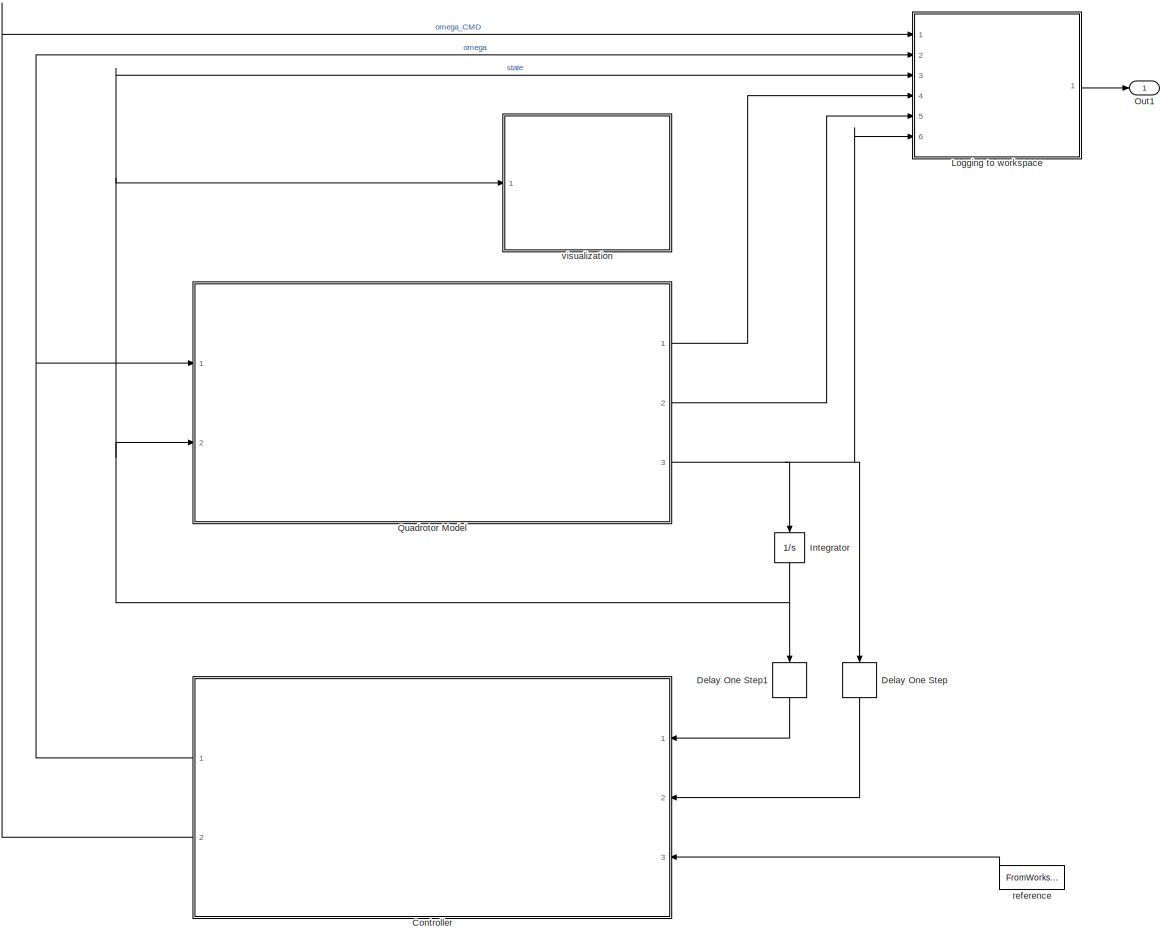
[diagram: root canvas - part 1/1, most of the canvas]
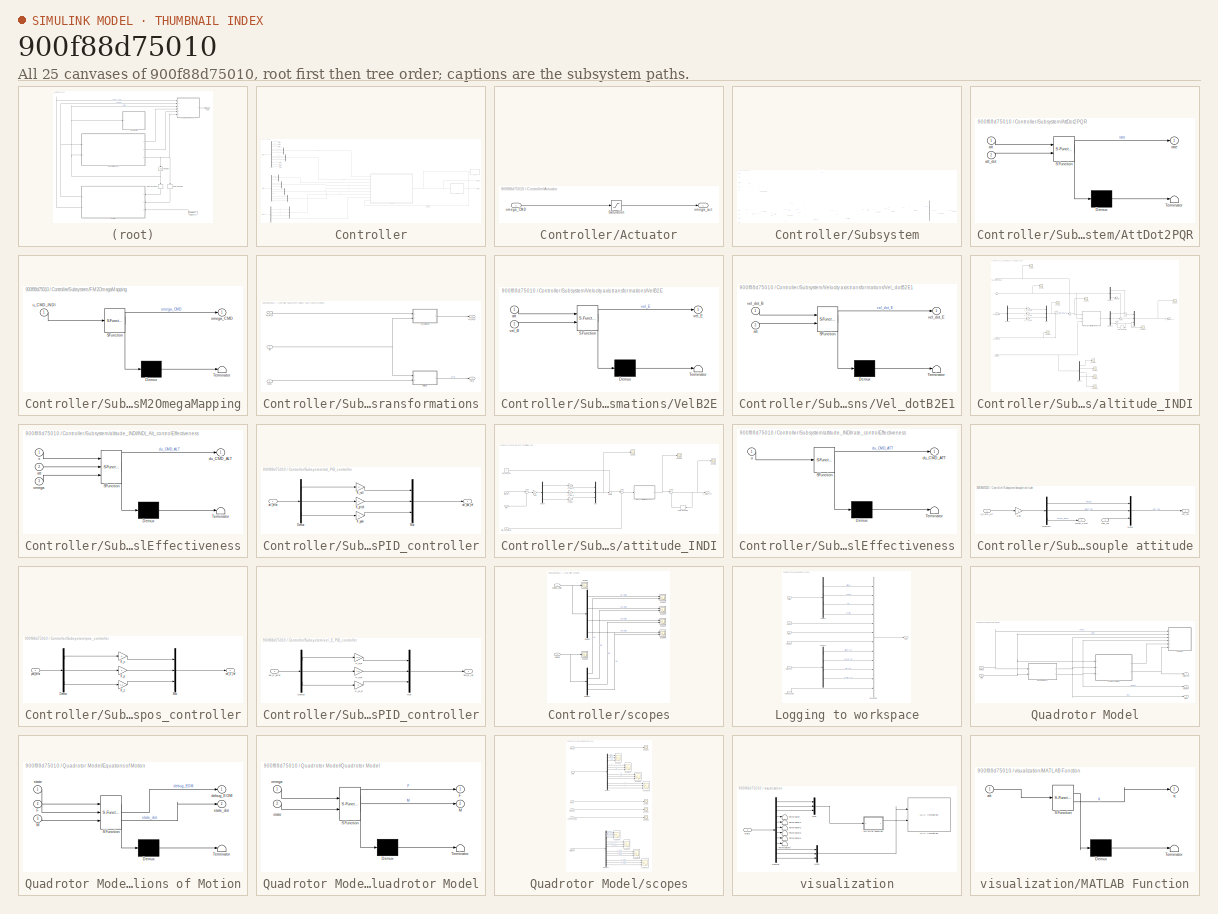
[diagram: thumbnail index - all 25 canvases of the model, root first then tree order]
MODEL slx_900f88d75010
KIND model
CONFIG AbsTol = auto
CONFIG EnableMultiTasking = off
CONFIG FixedStep = auto
CONFIG MaxStep = auto
CONFIG MinStep = auto
CONFIG RelTol = 1e-3
CONFIG SampleTimeConstraint = Unconstrained
CONFIG SolverName = VariableStepAuto
CONFIG StartTime = 0.0
CONFIG StopTime = 2
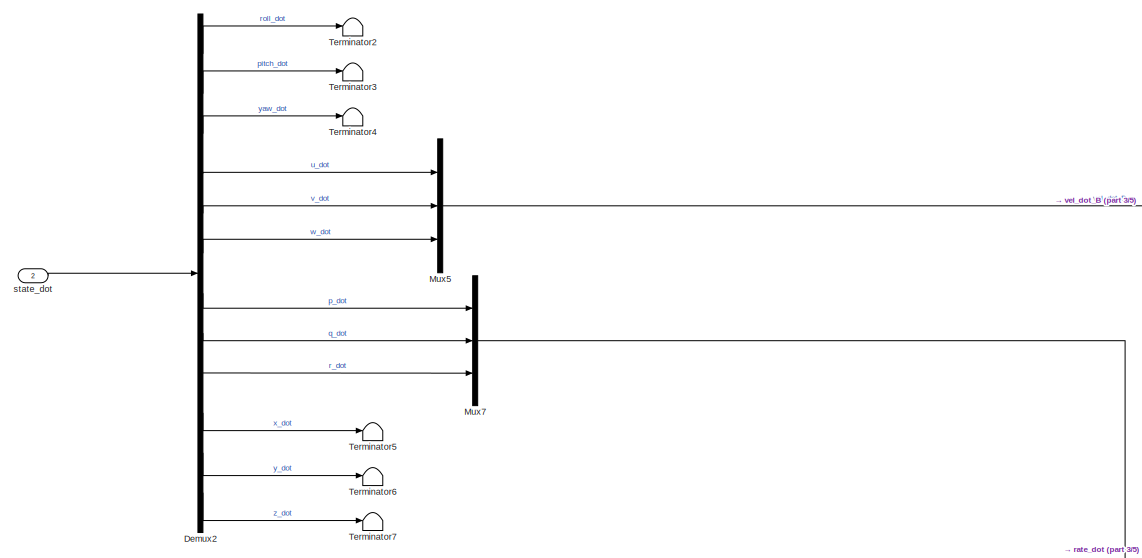
[diagram: Controller - part 1/5, top left region]
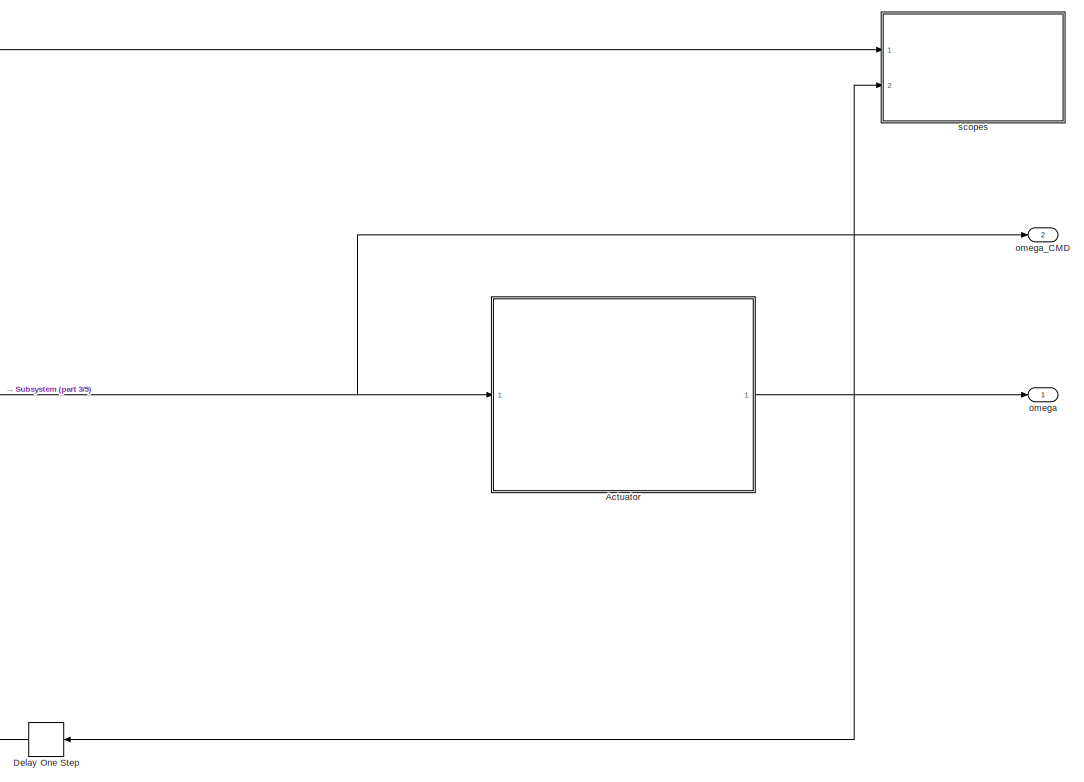
[diagram: Controller - part 2/5, middle right region]
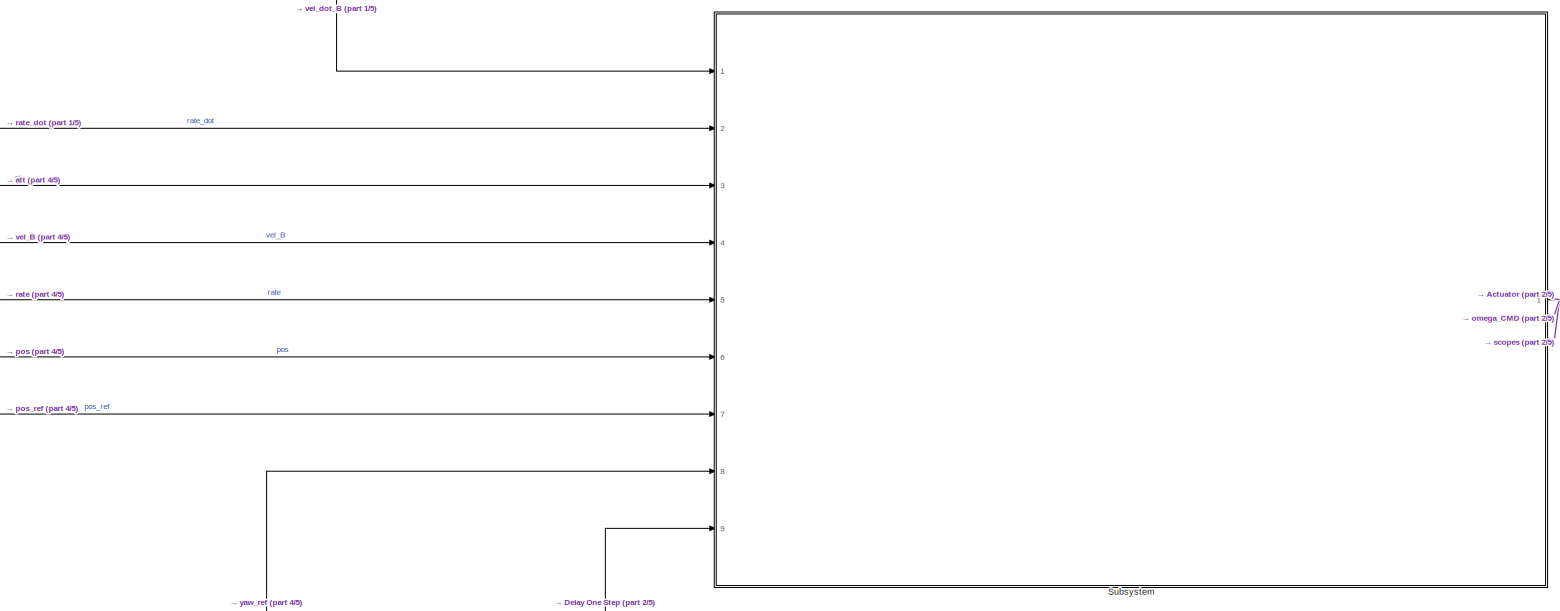
[diagram: Controller - part 3/5, central region]
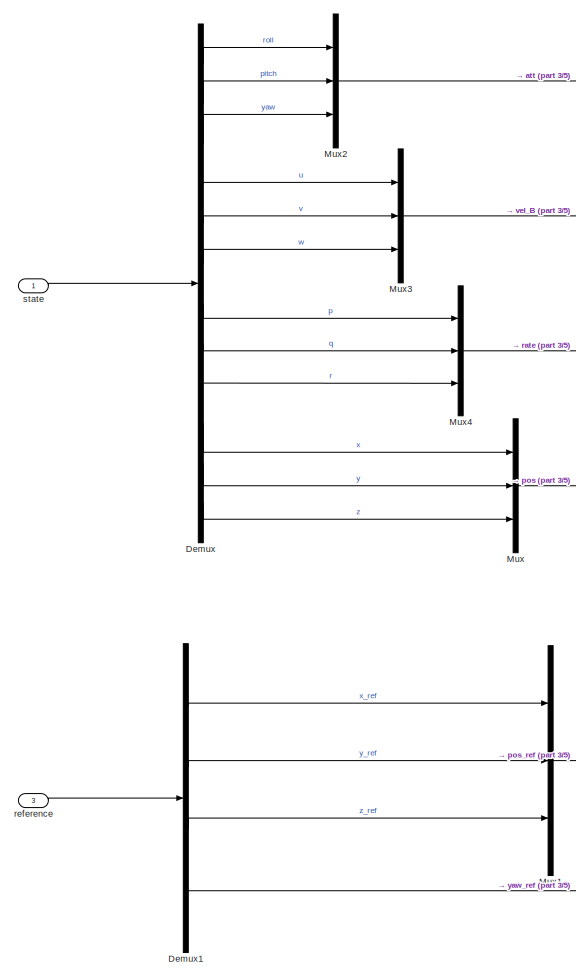
[diagram: Controller - part 4/5, bottom left region]
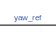
[diagram: Controller - part 5/5, bottom left region]
BLOCK [SubSystem] Controller
  Ports = [3, 2]
  RequestExecContextInheritance = off
BLOCK [SubSystem] Controller/Actuator
  Ports = [1, 1]
  RequestExecContextInheritance = off
BLOCK [Saturate] Controller/Actuator/Saturation
  LowerLimit = droneParams.minRPM
  UpperLimit = droneParams.maxRPM
BLOCK [Inport] Controller/Actuator/omega_CMD
BLOCK [Outport] Controller/Actuator/omega_act
BLOCK [Delay] Controller/Delay One Step
  DelayLength = 1
  InitialCondition = initialOmega
  InputPortMap = u0
  Ports = [1, 1]
BLOCK [Demux] Controller/Demux
  Outputs = 12
  Ports = [1, 12]
BLOCK [Demux] Controller/Demux1
  Ports = [1, 4]
BLOCK [Demux] Controller/Demux2
  Outputs = 12
  Ports = [1, 12]
BLOCK [Mux] Controller/Mux
  DisplayOption = bar
  Inputs = 3
  Ports = [3, 1]
BLOCK [Mux] Controller/Mux1
  DisplayOption = bar
  Inputs = 3
  Ports = [3, 1]
BLOCK [Mux] Controller/Mux2
  DisplayOption = bar
  Inputs = 3
  Ports = [3, 1]
BLOCK [Mux] Controller/Mux3
  DisplayOption = bar
  Inputs = 3
  Ports = [3, 1]
BLOCK [Mux] Controller/Mux4
  DisplayOption = bar
  Inputs = 3
  Ports = [3, 1]
BLOCK [Mux] Controller/Mux5
  DisplayOption = bar
  Inputs = 3
  Ports = [3, 1]
BLOCK [Mux] Controller/Mux7
  DisplayOption = bar
  Inputs = 3
  Ports = [3, 1]
BLOCK [SubSystem] Controller/Subsystem
  Ports = [9, 1]
  RequestExecContextInheritance = off
BLOCK [SubSystem] Controller/Subsystem/AttDot2PQR
  ErrorFcn = Stateflow.Translate.translate
  PermitHierarchicalResolution = ExplicitOnly
  Ports = [2, 1]
  RequestExecContextInheritance = off
  SFBlockType = MATLAB Function
  TreatAsAtomicUnit = on
BLOCK [Demux] Controller/Subsystem/AttDot2PQR/ Demux 
  Outputs = 1
  Ports = [1, 1]
BLOCK [S-Function] Controller/Subsystem/AttDot2PQR/ SFunction 
  EnableBusSupport = on
  FunctionName = sf_sfun
  PortCounts = [2 2]
  Ports = [2, 2]
  SFcnIsStateOwnerBlock = off
  SFunctionDeploymentMode = off
  Tag = Stateflow S-Function 6
BLOCK [Terminator] Controller/Subsystem/AttDot2PQR/ Terminator 
BLOCK [Inport] Controller/Subsystem/AttDot2PQR/att
BLOCK [Inport] Controller/Subsystem/AttDot2PQR/att_dot
  Port = 2
BLOCK [Outport] Controller/Subsystem/AttDot2PQR/rate
BLOCK [SubSystem] Controller/Subsystem/FM2OmegaMapping
  ErrorFcn = Stateflow.Translate.translate
  PermitHierarchicalResolution = ExplicitOnly
  Ports = [1, 1]
  RequestExecContextInheritance = off
  SFBlockType = MATLAB Function
  TreatAsAtomicUnit = on
BLOCK [Demux] Controller/Subsystem/FM2OmegaMapping/ Demux 
  Outputs = 1
  Ports = [1, 1]
BLOCK [S-Function] Controller/Subsystem/FM2OmegaMapping/ SFunction 
  EnableBusSupport = on
  FunctionName = sf_sfun
  Parameters = droneParams
  PortCounts = [1 2]
  Ports = [1, 2]
  SFcnIsStateOwnerBlock = off
  SFunctionDeploymentMode = off
  Tag = Stateflow S-Function 8
BLOCK [Terminator] Controller/Subsystem/FM2OmegaMapping/ Terminator 
BLOCK [Outport] Controller/Subsystem/FM2OmegaMapping/omega_CMD
BLOCK [Inport] Controller/Subsystem/FM2OmegaMapping/u_CMD_INDI
BLOCK [Gain] Controller/Subsystem/Gain1
  Gain = -1
BLOCK [Mux] Controller/Subsystem/Mux8
  DisplayOption = bar
  Inputs = 2
  Ports = [2, 1]
BLOCK [Sum] Controller/Subsystem/Sum
  Inputs = +-|
  Ports = [2, 1]
BLOCK [Sum] Controller/Subsystem/Sum1
  Inputs = -+|
  Ports = [2, 1]
BLOCK [Sum] Controller/Subsystem/Sum2
  Inputs = -+|
  Ports = [2, 1]
BLOCK [SubSystem] Controller/Subsystem/Velocity axis transformations
  Ports = [3, 2]
  RequestExecContextInheritance = off
BLOCK [SubSystem] Controller/Subsystem/Velocity axis transformations/VelB2E
  ErrorFcn = Stateflow.Translate.translate
  PermitHierarchicalResolution = ExplicitOnly
  Ports = [2, 1]
  RequestExecContextInheritance = off
  SFBlockType = MATLAB Function
  TreatAsAtomicUnit = on
BLOCK [Demux] Controller/Subsystem/Velocity axis transformations/VelB2E/ Demux 
  Outputs = 1
  Ports = [1, 1]
BLOCK [S-Function] Controller/Subsystem/Velocity axis transformations/VelB2E/ SFunction 
  EnableBusSupport = on
  FunctionName = sf_sfun
  PortCounts = [2 2]
  Ports = [2, 2]
  SFcnIsStateOwnerBlock = off
  SFunctionDeploymentMode = off
  Tag = Stateflow S-Function 3
BLOCK [Terminator] Controller/Subsystem/Velocity axis transformations/VelB2E/ Terminator 
BLOCK [Inport] Controller/Subsystem/Velocity axis transformations/VelB2E/att
BLOCK [Inport] Controller/Subsystem/Velocity axis transformations/VelB2E/vel_B
  Port = 2
BLOCK [Outport] Controller/Subsystem/Velocity axis transformations/VelB2E/vel_E
BLOCK [SubSystem] Controller/Subsystem/Velocity axis transformations/Vel_dotB2E1
  ErrorFcn = Stateflow.Translate.translate
  PermitHierarchicalResolution = ExplicitOnly
  Ports = [2, 1]
  RequestExecContextInheritance = off
  SFBlockType = MATLAB Function
  TreatAsAtomicUnit = on
BLOCK [Demux] Controller/Subsystem/Velocity axis transformations/Vel_dotB2E1/ Demux 
  Outputs = 1
  Ports = [1, 1]
BLOCK [S-Function] Controller/Subsystem/Velocity axis transformations/Vel_dotB2E1/ SFunction 
  EnableBusSupport = on
  FunctionName = sf_sfun
  PortCounts = [2 2]
  Ports = [2, 2]
  SFcnIsStateOwnerBlock = off
  SFunctionDeploymentMode = off
  Tag = Stateflow S-Function 4
BLOCK [Terminator] Controller/Subsystem/Velocity axis transformations/Vel_dotB2E1/ Terminator 
BLOCK [Inport] Controller/Subsystem/Velocity axis transformations/Vel_dotB2E1/att
  Port = 2
BLOCK [Inport] Controller/Subsystem/Velocity axis transformations/Vel_dotB2E1/vel_dot_B
BLOCK [Outport] Controller/Subsystem/Velocity axis transformations/Vel_dotB2E1/vel_dot_E
BLOCK [Inport] Controller/Subsystem/Velocity axis transformations/att
  Port = 3
BLOCK [Inport] Controller/Subsystem/Velocity axis transformations/vel_B
  Port = 2
BLOCK [Outport] Controller/Subsystem/Velocity axis transformations/vel_E
  Port = 2
BLOCK [Inport] Controller/Subsystem/Velocity axis transformations/vel_dot_B
BLOCK [Outport] Controller/Subsystem/Velocity axis transformations/vel_dot_E
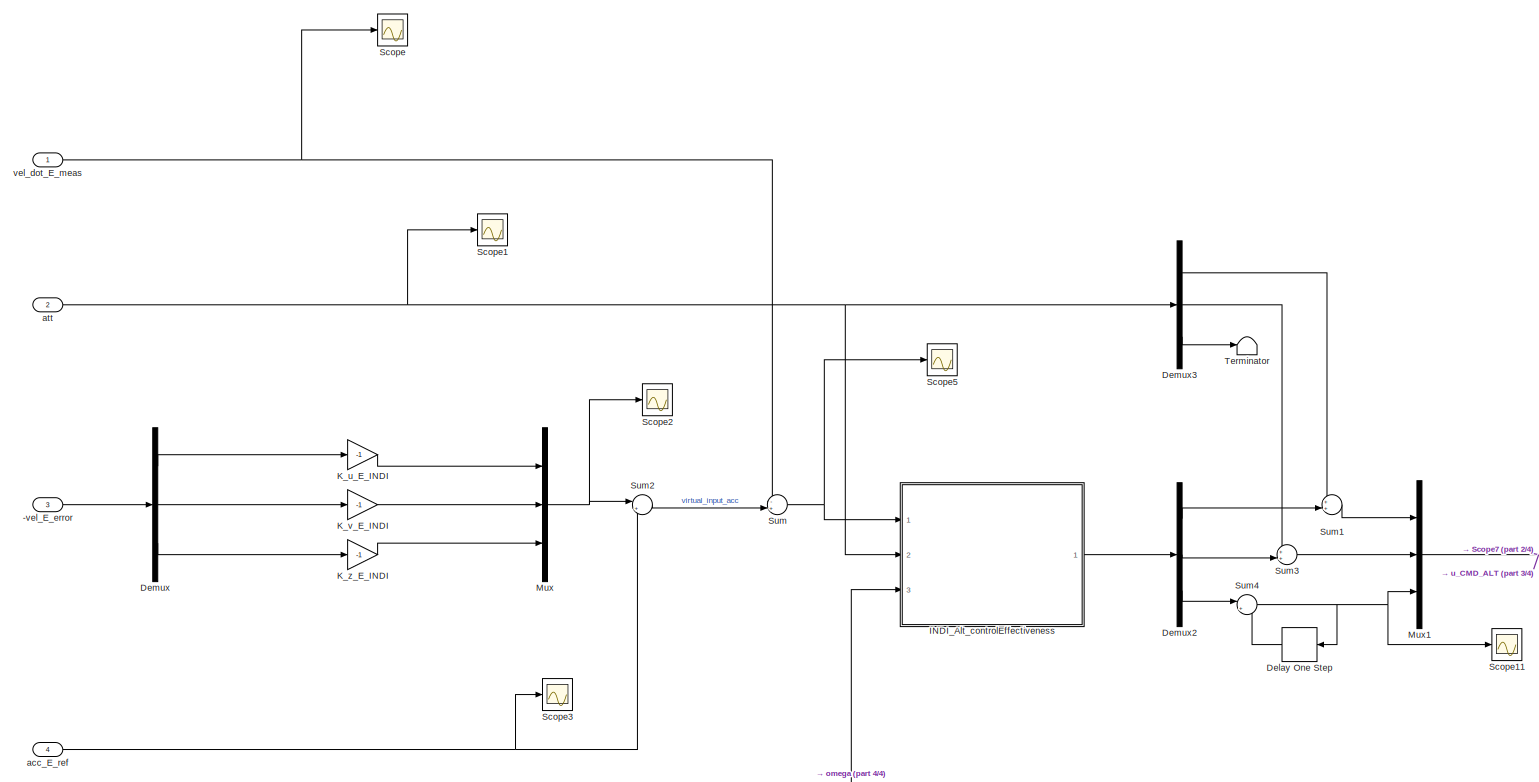
[diagram: Controller/Subsystem/altitude_INDI - part 1/4, full width, top band]
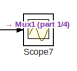
[diagram: Controller/Subsystem/altitude_INDI - part 2/4, top right region]
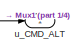
[diagram: Controller/Subsystem/altitude_INDI - part 3/4, middle right region]
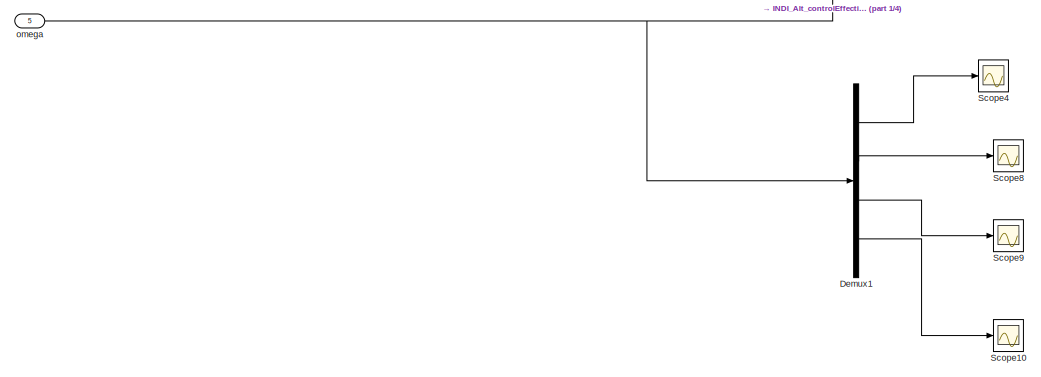
[diagram: Controller/Subsystem/altitude_INDI - part 4/4, bottom left region]
BLOCK [SubSystem] Controller/Subsystem/altitude_INDI
  Ports = [5, 1]
  RequestExecContextInheritance = off
BLOCK [Inport] Controller/Subsystem/altitude_INDI/-vel_E_error
  Port = 3
BLOCK [Delay] Controller/Subsystem/altitude_INDI/Delay One Step
  DelayLength = 1
  InputPortMap = u0
  NameLocation = top
  Ports = [1, 1]
BLOCK [Demux] Controller/Subsystem/altitude_INDI/Demux
  Outputs = 3
  Ports = [1, 3]
BLOCK [Demux] Controller/Subsystem/altitude_INDI/Demux1
  Ports = [1, 4]
BLOCK [Demux] Controller/Subsystem/altitude_INDI/Demux2
  Outputs = 3
  Ports = [1, 3]
BLOCK [Demux] Controller/Subsystem/altitude_INDI/Demux3
  Outputs = 3
  Ports = [1, 3]
BLOCK [SubSystem] Controller/Subsystem/altitude_INDI/INDI_Alt_controlEffectiveness
  ErrorFcn = Stateflow.Translate.translate
  PermitHierarchicalResolution = ExplicitOnly
  Ports = [3, 1]
  RequestExecContextInheritance = off
  SFBlockType = MATLAB Function
  TreatAsAtomicUnit = on
BLOCK [Demux] Controller/Subsystem/altitude_INDI/INDI_Alt_controlEffectiveness/ Demux 
  Outputs = 1
  Ports = [1, 1]
BLOCK [S-Function] Controller/Subsystem/altitude_INDI/INDI_Alt_controlEffectiveness/ SFunction 
  EnableBusSupport = on
  FunctionName = sf_sfun
  Parameters = droneParams
  PortCounts = [3 2]
  Ports = [3, 2]
  SFcnIsStateOwnerBlock = off
  SFunctionDeploymentMode = off
  Tag = Stateflow S-Function 5
BLOCK [Terminator] Controller/Subsystem/altitude_INDI/INDI_Alt_controlEffectiveness/ Terminator 
BLOCK [Inport] Controller/Subsystem/altitude_INDI/INDI_Alt_controlEffectiveness/att
  Port = 2
BLOCK [Outport] Controller/Subsystem/altitude_INDI/INDI_Alt_controlEffectiveness/du_CMD_ALT
BLOCK [Inport] Controller/Subsystem/altitude_INDI/INDI_Alt_controlEffectiveness/omega
  Port = 3
BLOCK [Inport] Controller/Subsystem/altitude_INDI/INDI_Alt_controlEffectiveness/x
BLOCK [Gain] Controller/Subsystem/altitude_INDI/K_u_E_INDI
  Gain = -1
BLOCK [Gain] Controller/Subsystem/altitude_INDI/K_v_E_INDI
  Gain = -1
BLOCK [Gain] Controller/Subsystem/altitude_INDI/K_z_E_INDI
  Gain = -1
BLOCK [Mux] Controller/Subsystem/altitude_INDI/Mux
  DisplayOption = bar
  Inputs = 3
  Ports = [3, 1]
BLOCK [Mux] Controller/Subsystem/altitude_INDI/Mux1
  DisplayOption = bar
  Inputs = 3
  Ports = [3, 1]
BLOCK [Scope] Controller/Subsystem/altitude_INDI/Scope
  Floating = off
  NumInputPorts = 1
  Ports = [1]
  ScopeSpecificationString = Simulink.scopes.TimeScopeBlockCfg('CurrentConfiguration', extmgr.ConfigurationSet(extmgr.Configuration('Core','General UI',true),extmgr.Configuration('Core','Source UI',true),extmgr.Configuration('Sources','WiredSimulink',true,'DataLoggingVariableName','ScopeData29'),extmgr.Configuration('Visuals','Time Domain',true,'SerializedDisplays',{struct('MinYLimReal','-2.56438','MaxYLimReal','5.07501','YLa...<+1433ch>
BLOCK [Scope] Controller/Subsystem/altitude_INDI/Scope1
  Floating = off
  NumInputPorts = 1
  Ports = [1]
  ScopeSpecificationString = Simulink.scopes.TimeScopeBlockCfg('CurrentConfiguration', extmgr.ConfigurationSet(extmgr.Configuration('Core','General UI',true),extmgr.Configuration('Core','Source UI',true),extmgr.Configuration('Sources','WiredSimulink',true,'DataLoggingVariableName','ScopeData30'),extmgr.Configuration('Visuals','Time Domain',true,'SerializedDisplays',{struct('MinYLimReal','-0.79235','MaxYLimReal','0.2459','YLab...<+1398ch>
BLOCK [Scope] Controller/Subsystem/altitude_INDI/Scope10
  Floating = off
  NumInputPorts = 1
  Ports = [1]
  ScopeSpecificationString = Simulink.scopes.TimeScopeBlockCfg('CurrentConfiguration', extmgr.ConfigurationSet(extmgr.Configuration('Core','General UI',true),extmgr.Configuration('Core','Source UI',true),extmgr.Configuration('Sources','WiredSimulink',true,'DataLoggingVariableName','ScopeData39'),extmgr.Configuration('Visuals','Time Domain',true,'SerializedDisplays',{struct('MinYLimReal','-10','MaxYLimReal','2500','YLabelReal'...<+1349ch>
BLOCK [Scope] Controller/Subsystem/altitude_INDI/Scope11
  Floating = off
  NumInputPorts = 1
  Ports = [1]
  ScopeSpecificationString = Simulink.scopes.TimeScopeBlockCfg('CurrentConfiguration', extmgr.ConfigurationSet(extmgr.Configuration('Core','General UI',true),extmgr.Configuration('Core','Source UI',true),extmgr.Configuration('Sources','WiredSimulink',true,'DataLoggingVariableName','ScopeData2'),extmgr.Configuration('Visuals','Time Domain',true,'SerializedDisplays',{struct('MinYLimReal','-4.96339','MaxYLimReal','0.55149','YLab...<+1363ch>
BLOCK [Scope] Controller/Subsystem/altitude_INDI/Scope2
  Floating = off
  NumInputPorts = 1
  Ports = [1]
  ScopeSpecificationString = Simulink.scopes.TimeScopeBlockCfg('CurrentConfiguration', extmgr.ConfigurationSet(extmgr.Configuration('Core','General UI',true),extmgr.Configuration('Core','Source UI',true),extmgr.Configuration('Sources','WiredSimulink',true,'DataLoggingVariableName','ScopeData31'),extmgr.Configuration('Visuals','Time Domain',true,'SerializedDisplays',{struct('MinYLimReal','-0.13907','MaxYLimReal','0.26068','YLa...<+1396ch>
BLOCK [Scope] Controller/Subsystem/altitude_INDI/Scope3
  Floating = off
  NumInputPorts = 1
  Ports = [1]
  ScopeSpecificationString = Simulink.scopes.TimeScopeBlockCfg('CurrentConfiguration', extmgr.ConfigurationSet(extmgr.Configuration('Core','General UI',true),extmgr.Configuration('Core','Source UI',true),extmgr.Configuration('Sources','WiredSimulink',true,'DataLoggingVariableName','ScopeData32'),extmgr.Configuration('Visuals','Time Domain',true,'SerializedDisplays',{struct('MinYLimReal','-0.4034','MaxYLimReal','0.65789','YLab...<+1397ch>
BLOCK [Scope] Controller/Subsystem/altitude_INDI/Scope4
  Floating = off
  NumInputPorts = 1
  Ports = [1]
  ScopeSpecificationString = Simulink.scopes.TimeScopeBlockCfg('CurrentConfiguration', extmgr.ConfigurationSet(extmgr.Configuration('Core','General UI',true),extmgr.Configuration('Core','Source UI',true),extmgr.Configuration('Sources','WiredSimulink',true,'DataLoggingVariableName','ScopeData33'),extmgr.Configuration('Visuals','Time Domain',true,'SerializedDisplays',{struct('MinYLimReal','76.02303','MaxYLimReal','1315.79272','...<+1382ch>
BLOCK [Scope] Controller/Subsystem/altitude_INDI/Scope5
  Floating = off
  NumInputPorts = 1
  Ports = [1]
  ScopeSpecificationString = Simulink.scopes.TimeScopeBlockCfg('CurrentConfiguration', extmgr.ConfigurationSet(extmgr.Configuration('Core','General UI',true),extmgr.Configuration('Core','Source UI',true),extmgr.Configuration('Sources','WiredSimulink',true,'DataLoggingVariableName','ScopeData34'),extmgr.Configuration('Visuals','Time Domain',true,'SerializedDisplays',{struct('MinYLimReal','-10.02297','MaxYLimReal','1.92874','YL...<+1385ch>
BLOCK [Scope] Controller/Subsystem/altitude_INDI/Scope7
  Floating = off
  NumInputPorts = 1
  Ports = [1]
  ScopeSpecificationString = Simulink.scopes.TimeScopeBlockCfg('CurrentConfiguration', extmgr.ConfigurationSet(extmgr.Configuration('Core','General UI',true),extmgr.Configuration('Core','Source UI',true),extmgr.Configuration('Sources','WiredSimulink',true,'DataLoggingVariableName','ScopeData36'),extmgr.Configuration('Visuals','Time Domain',true,'SerializedDisplays',{struct('MinYLimReal','-5.57793','MaxYLimReal','0.72212','YLa...<+1397ch>
BLOCK [Scope] Controller/Subsystem/altitude_INDI/Scope8
  Floating = off
  NumInputPorts = 1
  Ports = [1]
  ScopeSpecificationString = Simulink.scopes.TimeScopeBlockCfg('CurrentConfiguration', extmgr.ConfigurationSet(extmgr.Configuration('Core','General UI',true),extmgr.Configuration('Core','Source UI',true),extmgr.Configuration('Sources','WiredSimulink',true,'DataLoggingVariableName','ScopeData37'),extmgr.Configuration('Visuals','Time Domain',true,'SerializedDisplays',{struct('MinYLimReal','-1.00000','MaxYLimReal','2100','YLabel...<+1404ch>
BLOCK [Scope] Controller/Subsystem/altitude_INDI/Scope9
  Floating = off
  NumInputPorts = 1
  Ports = [1]
  ScopeSpecificationString = Simulink.scopes.TimeScopeBlockCfg('CurrentConfiguration', extmgr.ConfigurationSet(extmgr.Configuration('Core','General UI',true),extmgr.Configuration('Core','Source UI',true),extmgr.Configuration('Sources','WiredSimulink',true,'DataLoggingVariableName','ScopeData38'),extmgr.Configuration('Visuals','Time Domain',true,'SerializedDisplays',{struct('MinYLimReal','167.46679','MaxYLimReal','492.79886','...<+1401ch>
BLOCK [Sum] Controller/Subsystem/altitude_INDI/Sum
  Inputs = -+|
  Ports = [2, 1]
BLOCK [Sum] Controller/Subsystem/altitude_INDI/Sum1
  Inputs = ++|
  Ports = [2, 1]
BLOCK [Sum] Controller/Subsystem/altitude_INDI/Sum2
  Inputs = |++
  Ports = [2, 1]
BLOCK [Sum] Controller/Subsystem/altitude_INDI/Sum3
  Inputs = ++|
  Ports = [2, 1]
BLOCK [Sum] Controller/Subsystem/altitude_INDI/Sum4
  Inputs = |++
  Ports = [2, 1]
BLOCK [Terminator] Controller/Subsystem/altitude_INDI/Terminator
BLOCK [Inport] Controller/Subsystem/altitude_INDI/acc_E_ref
  Port = 4
BLOCK [Inport] Controller/Subsystem/altitude_INDI/att
  Port = 2
BLOCK [Inport] Controller/Subsystem/altitude_INDI/omega
  Port = 5
BLOCK [Outport] Controller/Subsystem/altitude_INDI/u_CMD_ALT
BLOCK [Inport] Controller/Subsystem/altitude_INDI/vel_dot_E_meas
BLOCK [Inport] Controller/Subsystem/att
  Port = 3
BLOCK [SubSystem] Controller/Subsystem/att_PID_controller
  Ports = [1, 1]
  RequestExecContextInheritance = off
BLOCK [Demux] Controller/Subsystem/att_PID_controller/Demux
  Outputs = 3
  Ports = [1, 3]
BLOCK [Gain] Controller/Subsystem/att_PID_controller/K_pitch
  Gain = 2
BLOCK [Gain] Controller/Subsystem/att_PID_controller/K_roll
  Gain = 2
BLOCK [Gain] Controller/Subsystem/att_PID_controller/K_yaw
  Gain = 2
BLOCK [Mux] Controller/Subsystem/att_PID_controller/Mux
  DisplayOption = bar
  Inputs = 3
  Ports = [3, 1]
BLOCK [Outport] Controller/Subsystem/att_PID_controller/att_dot_ref
BLOCK [Inport] Controller/Subsystem/att_PID_controller/att_error
BLOCK [SubSystem] Controller/Subsystem/attitude_INDI
  Ports = [3, 1]
  RequestExecContextInheritance = off
BLOCK [Delay] Controller/Subsystem/attitude_INDI/Delay One Step
  DelayLength = 1
  InputPortMap = u0
  Ports = [1, 1]
BLOCK [Demux] Controller/Subsystem/attitude_INDI/Demux
  Outputs = 3
  Ports = [1, 3]
BLOCK [Gain] Controller/Subsystem/attitude_INDI/Gain
  Gain = -1
BLOCK [Gain] Controller/Subsystem/attitude_INDI/K_INDI_p
  Gain = 10
BLOCK [Gain] Controller/Subsystem/attitude_INDI/K_INDI_q
  Gain = 10
BLOCK [Gain] Controller/Subsystem/attitude_INDI/K_INDI_r
  Gain = 5
BLOCK [Mux] Controller/Subsystem/attitude_INDI/Mux
  DisplayOption = bar
  Inputs = 3
  Ports = [3, 1]
BLOCK [Scope] Controller/Subsystem/attitude_INDI/Scope
  Floating = off
  NumInputPorts = 1
  Ports = [1]
  ScopeSpecificationString = Simulink.scopes.TimeScopeBlockCfg('CurrentConfiguration', extmgr.ConfigurationSet(extmgr.Configuration('Core','General UI',true),extmgr.Configuration('Core','Source UI',true),extmgr.Configuration('Sources','WiredSimulink',true,'DataLoggingVariableName','ScopeData9'),extmgr.Configuration('Visuals','Time Domain',true,'SerializedDisplays',{struct('MinYLimReal','-99.44465','MaxYLimReal','235.76904','Y...<+1399ch>
BLOCK [Scope] Controller/Subsystem/attitude_INDI/Scope1
  Floating = off
  NumInputPorts = 1
  Ports = [1]
  ScopeSpecificationString = Simulink.scopes.TimeScopeBlockCfg('CurrentConfiguration', extmgr.ConfigurationSet(extmgr.Configuration('Core','General UI',true),extmgr.Configuration('Core','Source UI',true),extmgr.Configuration('Sources','WiredSimulink',true,'DataLoggingVariableName','ScopeData1'),extmgr.Configuration('Visuals','Time Domain',true,'SerializedDisplays',{struct('MinYLimReal','-0.03078','MaxYLimReal','0.02965','YLab...<+1402ch>
BLOCK [Scope] Controller/Subsystem/attitude_INDI/Scope2
  Floating = off
  NumInputPorts = 1
  Ports = [1]
  ScopeSpecificationString = Simulink.scopes.TimeScopeBlockCfg('CurrentConfiguration', extmgr.ConfigurationSet(extmgr.Configuration('Core','General UI',true),extmgr.Configuration('Core','Source UI',true),extmgr.Configuration('Sources','WiredSimulink',true,'DataLoggingVariableName','ScopeData3'),extmgr.Configuration('Visuals','Time Domain',true,'SerializedDisplays',{struct('MinYLimReal','-0.03122','MaxYLimReal','0.01477','YLab...<+1446ch>
BLOCK [Sum] Controller/Subsystem/attitude_INDI/Sum
  Inputs = |-+
  Ports = [2, 1]
BLOCK [Sum] Controller/Subsystem/attitude_INDI/Sum1
  Inputs = ++|
  Ports = [2, 1]
BLOCK [Sum] Controller/Subsystem/attitude_INDI/Sum2
  Inputs = |+-
  Ports = [2, 1]
BLOCK [Sum] Controller/Subsystem/attitude_INDI/Sum3
  Inputs = |++
  Ports = [2, 1]
BLOCK [Constant] Controller/Subsystem/attitude_INDI/pqr_dot_des
  Value = 0
BLOCK [Inport] Controller/Subsystem/attitude_INDI/rate
  Port = 2
BLOCK [SubSystem] Controller/Subsystem/attitude_INDI/rate_controlEffectiveness
  ErrorFcn = Stateflow.Translate.translate
  PermitHierarchicalResolution = ExplicitOnly
  Ports = [1, 1]
  RequestExecContextInheritance = off
  SFBlockType = MATLAB Function
  TreatAsAtomicUnit = on
BLOCK [Demux] Controller/Subsystem/attitude_INDI/rate_controlEffectiveness/ Demux 
  Outputs = 1
  Ports = [1, 1]
BLOCK [S-Function] Controller/Subsystem/attitude_INDI/rate_controlEffectiveness/ SFunction 
  EnableBusSupport = on
  FunctionName = sf_sfun
  Parameters = droneParams
  PortCounts = [1 2]
  Ports = [1, 2]
  SFcnIsStateOwnerBlock = off
  SFunctionDeploymentMode = off
  Tag = Stateflow S-Function 7
BLOCK [Terminator] Controller/Subsystem/attitude_INDI/rate_controlEffectiveness/ Terminator 
BLOCK [Outport] Controller/Subsystem/attitude_INDI/rate_controlEffectiveness/du_CMD_ATT
BLOCK [Inport] Controller/Subsystem/attitude_INDI/rate_controlEffectiveness/u
BLOCK [Inport] Controller/Subsystem/attitude_INDI/rate_dot_meas
BLOCK [Inport] Controller/Subsystem/attitude_INDI/rate_ref
  Port = 3
BLOCK [Outport] Controller/Subsystem/attitude_INDI/u_CMD_ATT
BLOCK [SubSystem] Controller/Subsystem/decouple attitude
  Ports = [2, 2]
  RequestExecContextInheritance = off
BLOCK [Demux] Controller/Subsystem/decouple attitude/Demux4
  Outputs = 3
  Ports = [1, 3]
BLOCK [Gain] Controller/Subsystem/decouple attitude/Gain
  Gain = -1
BLOCK [Mux] Controller/Subsystem/decouple attitude/Mux6
  DisplayOption = bar
  Inputs = 3
  Ports = [3, 1]
BLOCK [Outport] Controller/Subsystem/decouple attitude/att_ref
BLOCK [Outport] Controller/Subsystem/decouple attitude/thrust_CMD
  Port = 2
BLOCK [Inport] Controller/Subsystem/decouple attitude/u_CMD_ALT
BLOCK [Inport] Controller/Subsystem/decouple attitude/yaw_ref
  Port = 2
BLOCK [Inport] Controller/Subsystem/omega
  Port = 9
BLOCK [Outport] Controller/Subsystem/omega_CMD
BLOCK [Inport] Controller/Subsystem/pos
  Port = 6
BLOCK [SubSystem] Controller/Subsystem/pos_controller
  Ports = [1, 1]
  RequestExecContextInheritance = off
BLOCK [Demux] Controller/Subsystem/pos_controller/Demux
  Outputs = 3
  Ports = [1, 3]
BLOCK [Gain] Controller/Subsystem/pos_controller/K_x
BLOCK [Gain] Controller/Subsystem/pos_controller/K_y
BLOCK [Gain] Controller/Subsystem/pos_controller/K_z
  Gain = 1.5
BLOCK [Mux] Controller/Subsystem/pos_controller/Mux
  DisplayOption = bar
  Inputs = 3
  Ports = [3, 1]
BLOCK [Inport] Controller/Subsystem/pos_controller/pos_error
BLOCK [Outport] Controller/Subsystem/pos_controller/vel_E_ref
BLOCK [Inport] Controller/Subsystem/pos_ref
  Port = 7
BLOCK [Inport] Controller/Subsystem/rate
  Port = 5
BLOCK [Inport] Controller/Subsystem/rate_dot
  Port = 2
BLOCK [Inport] Controller/Subsystem/vel_B
  Port = 4
BLOCK [SubSystem] Controller/Subsystem/vel_E_PID_controller
  Ports = [1, 1]
  RequestExecContextInheritance = off
BLOCK [Demux] Controller/Subsystem/vel_E_PID_controller/Demux
  Outputs = 3
  Ports = [1, 3]
BLOCK [Gain] Controller/Subsystem/vel_E_PID_controller/K_u_E
  Gain = 2.5
BLOCK [Gain] Controller/Subsystem/vel_E_PID_controller/K_v_E
  Gain = 2.5
BLOCK [Gain] Controller/Subsystem/vel_E_PID_controller/K_w_E
  Gain = 3
BLOCK [Mux] Controller/Subsystem/vel_E_PID_controller/Mux
  DisplayOption = bar
  Inputs = 3
  Ports = [3, 1]
BLOCK [Outport] Controller/Subsystem/vel_E_PID_controller/acc_E_ref
BLOCK [Inport] Controller/Subsystem/vel_E_PID_controller/vel_E_error
BLOCK [Inport] Controller/Subsystem/vel_dot_B
BLOCK [Inport] Controller/Subsystem/yaw_ref
  Port = 8
BLOCK [Terminator] Controller/Terminator2
BLOCK [Terminator] Controller/Terminator3
BLOCK [Terminator] Controller/Terminator4
BLOCK [Terminator] Controller/Terminator5
BLOCK [Terminator] Controller/Terminator6
BLOCK [Terminator] Controller/Terminator7
BLOCK [Outport] Controller/omega
  PortDimensions = 4
BLOCK [Outport] Controller/omega_CMD
  Port = 2
BLOCK [Inport] Controller/reference
  Port = 3
BLOCK [SubSystem] Controller/scopes
  Ports = [2]
  RequestExecContextInheritance = off
BLOCK [Demux] Controller/scopes/Demux
  Ports = [1, 4]
BLOCK [Demux] Controller/scopes/Demux1
  Ports = [1, 4]
BLOCK [Scope] Controller/scopes/Scope
  Floating = off
  NumInputPorts = 1
  Ports = [1]
  ScopeSpecificationString = Simulink.scopes.TimeScopeBlockCfg('CurrentConfiguration', extmgr.ConfigurationSet(extmgr.Configuration('Core','General UI',true),extmgr.Configuration('Core','Source UI',true),extmgr.Configuration('Sources','WiredSimulink',true,'DataLoggingVariableName','ScopeData4'),extmgr.Configuration('Visuals','Time Domain',true,'SerializedDisplays',{struct('MinYLimReal','-359.3827','MaxYLimReal','3234.4443','Y...<+1468ch>
BLOCK [Scope] Controller/scopes/Scope1
  Floating = off
  NumInputPorts = 1
  Ports = [1]
  ScopeSpecificationString = Simulink.scopes.TimeScopeBlockCfg('CurrentConfiguration', extmgr.ConfigurationSet(extmgr.Configuration('Core','General UI',true),extmgr.Configuration('Core','Source UI',true),extmgr.Configuration('Sources','WiredSimulink',true,'DataLoggingVariableName','ScopeData2'),extmgr.Configuration('Visuals','Time Domain',true,'SerializedDisplays',{struct('MinYLimReal','1119.93475','MaxYLimReal','1127.35954',...<+1437ch>
BLOCK [Scope] Controller/scopes/Scope2
  Floating = off
  NumInputPorts = 2
  Ports = [2]
  ScopeSpecificationString = Simulink.scopes.TimeScopeBlockCfg('CurrentConfiguration', extmgr.ConfigurationSet(extmgr.Configuration('Core','General UI',true),extmgr.Configuration('Core','Source UI',true),extmgr.Configuration('Sources','WiredSimulink',true,'DataLoggingVariableName','ScopeData1'),extmgr.Configuration('Visuals','Time Domain',true,'SerializedDisplays',{struct('MinYLimReal','1149.11038','MaxYLimReal','1149.11179',...<+1411ch>
BLOCK [Scope] Controller/scopes/Scope3
  Floating = off
  NumInputPorts = 2
  Ports = [2]
  ScopeSpecificationString = Simulink.scopes.TimeScopeBlockCfg('CurrentConfiguration', extmgr.ConfigurationSet(extmgr.Configuration('Core','General UI',true),extmgr.Configuration('Core','Source UI',true),extmgr.Configuration('Sources','WiredSimulink',true,'DataLoggingVariableName','ScopeData2'),extmgr.Configuration('Visuals','Time Domain',true,'SerializedDisplays',{struct('MinYLimReal','-359.3827','MaxYLimReal','3234.4443','Y...<+1382ch>
BLOCK [Scope] Controller/scopes/Scope4
  Floating = off
  NumInputPorts = 2
  Ports = [2]
  ScopeSpecificationString = Simulink.scopes.TimeScopeBlockCfg('CurrentConfiguration', extmgr.ConfigurationSet(extmgr.Configuration('Core','General UI',true),extmgr.Configuration('Core','Source UI',true),extmgr.Configuration('Sources','WiredSimulink',true,'DataLoggingVariableName','ScopeData3'),extmgr.Configuration('Visuals','Time Domain',true,'SerializedDisplays',{struct('MinYLimReal','-309.37339','MaxYLimReal','2784.36049',...<+1388ch>
BLOCK [Scope] Controller/scopes/Scope5
  Floating = off
  NumInputPorts = 2
  Ports = [2]
  ScopeSpecificationString = Simulink.scopes.TimeScopeBlockCfg('CurrentConfiguration', extmgr.ConfigurationSet(extmgr.Configuration('Core','General UI',true),extmgr.Configuration('Core','Source UI',true),extmgr.Configuration('Sources','WiredSimulink',true,'DataLoggingVariableName','ScopeData4'),extmgr.Configuration('Visuals','Time Domain',true,'SerializedDisplays',{struct('MinYLimReal','-198.30291','MaxYLimReal','1784.72621',...<+1388ch>
BLOCK [Inport] Controller/scopes/omega
  Port = 2
BLOCK [Inport] Controller/scopes/omega_CMD
BLOCK [Inport] Controller/state
  PortDimensions = 12
BLOCK [Inport] Controller/state_dot
  Port = 2
  PortDimensions = 12
BLOCK [Delay] Delay One Step
  DelayLength = 1
  InitialCondition = 0
  InputPortMap = u0
  NameLocation = left
  Ports = [1, 1]
BLOCK [Delay] Delay One Step1
  DelayLength = 1
  InitialCondition = initialState
  InputPortMap = u0
  NameLocation = left
  Ports = [1, 1]
BLOCK [Integrator] Integrator
  NameLocation = left
  Ports = [1, 1]
BLOCK [SubSystem] Logging to workspace
  Ports = [6, 1]
  RequestExecContextInheritance = off
BLOCK [BusCreator] Logging to workspace/Bus Creator
  DisplayOption = bar
  InheritFromInputs = on
  Inputs = attitude,velocity,rate,position,omega,force,moment,attitude_dot,velocity_dot,rate_dot,position_dot,omega_CMD
  Ports = [12, 1]
BLOCK [Demux] Logging to workspace/Demux
  Ports = [1, 4]
BLOCK [Demux] Logging to workspace/Demux1
  Ports = [1, 4]
BLOCK [Outport] Logging to workspace/Out1
BLOCK [Inport] Logging to workspace/force
  Port = 4
BLOCK [Inport] Logging to workspace/moment
  Port = 5
BLOCK [Inport] Logging to workspace/omega
  Port = 2
BLOCK [Inport] Logging to workspace/omega_CMD
BLOCK [Inport] Logging to workspace/state
  Port = 3
BLOCK [Inport] Logging to workspace/state_dot
  Port = 6
BLOCK [Outport] Out1
BLOCK [SubSystem] Quadrotor Model
  Ports = [2, 3]
  RequestExecContextInheritance = off
BLOCK [SubSystem] Quadrotor Model/Equations of Motion
  ErrorFcn = Stateflow.Translate.translate
  PermitHierarchicalResolution = ExplicitOnly
  Ports = [3, 2]
  RequestExecContextInheritance = off
  SFBlockType = MATLAB Function
  TreatAsAtomicUnit = on
BLOCK [Demux] Quadrotor Model/Equations of Motion/ Demux 
  Outputs = 1
  Ports = [1, 1]
BLOCK [S-Function] Quadrotor Model/Equations of Motion/ SFunction 
  EnableBusSupport = on
  FunctionName = sf_sfun
  Parameters = droneParams,modelParams
  PortCounts = [3 3]
  Ports = [3, 3]
  SFcnIsStateOwnerBlock = off
  SFunctionDeploymentMode = off
  Tag = Stateflow S-Function 1
BLOCK [Terminator] Quadrotor Model/Equations of Motion/ Terminator 
BLOCK [Inport] Quadrotor Model/Equations of Motion/F
  Port = 2
BLOCK [Inport] Quadrotor Model/Equations of Motion/M
  Port = 3
BLOCK [Outport] Quadrotor Model/Equations of Motion/debug_EOM
BLOCK [Inport] Quadrotor Model/Equations of Motion/state
BLOCK [Outport] Quadrotor Model/Equations of Motion/state_dot
  Port = 2
BLOCK [SubSystem] Quadrotor Model/Quadrotor Model
  ErrorFcn = Stateflow.Translate.translate
  PermitHierarchicalResolution = ExplicitOnly
  Ports = [2, 2]
  RequestExecContextInheritance = off
  SFBlockType = MATLAB Function
  TreatAsAtomicUnit = on
BLOCK [Demux] Quadrotor Model/Quadrotor Model/ Demux 
  Outputs = 1
  Ports = [1, 1]
BLOCK [S-Function] Quadrotor Model/Quadrotor Model/ SFunction 
  EnableBusSupport = on
  FunctionName = sf_sfun
  Parameters = droneParams,modelParams
  PortCounts = [2 3]
  Ports = [2, 3]
  SFcnIsStateOwnerBlock = off
  SFunctionDeploymentMode = off
  Tag = Stateflow S-Function 2
BLOCK [Terminator] Quadrotor Model/Quadrotor Model/ Terminator 
BLOCK [Outport] Quadrotor Model/Quadrotor Model/F
BLOCK [Outport] Quadrotor Model/Quadrotor Model/M
  Port = 2
BLOCK [Inport] Quadrotor Model/Quadrotor Model/omega
BLOCK [Inport] Quadrotor Model/Quadrotor Model/state
  Port = 2
BLOCK [Outport] Quadrotor Model/force
BLOCK [Outport] Quadrotor Model/moment
  Port = 2
BLOCK [Inport] Quadrotor Model/omega
  OutMax = droneParams.maxRPM
  OutMin = droneParams.minRPM
  PortDimensions = 4
BLOCK [SubSystem] Quadrotor Model/scopes
  Ports = [6]
  RequestExecContextInheritance = off
BLOCK [Demux] Quadrotor Model/scopes/Demux
  Outputs = 12
  Ports = [1, 12]
BLOCK [Demux] Quadrotor Model/scopes/Demux1
  Outputs = 12
  Ports = [1, 12]
BLOCK [Scope] Quadrotor Model/scopes/Scope
  Floating = off
  NumInputPorts = 1
  Ports = [1]
  ScopeSpecificationString = Simulink.scopes.TimeScopeBlockCfg('CurrentConfiguration', extmgr.ConfigurationSet(extmgr.Configuration('Core','General UI',true),extmgr.Configuration('Core','Source UI',true),extmgr.Configuration('Sources','WiredSimulink',true,'DataLoggingVariableName','ScopeData4'),extmgr.Configuration('Visuals','Time Domain',true,'SerializedDisplays',{struct('MinYLimReal','-10.71926','MaxYLimReal','2.2605','YLab...<+1388ch>
BLOCK [Scope] Quadrotor Model/scopes/Scope1
  Floating = off
  NumInputPorts = 1
  Ports = [1]
  ScopeSpecificationString = Simulink.scopes.TimeScopeBlockCfg('CurrentConfiguration', extmgr.ConfigurationSet(extmgr.Configuration('Core','General UI',true),extmgr.Configuration('Core','Source UI',true),extmgr.Configuration('Sources','WiredSimulink',true,'DataLoggingVariableName','ScopeData5'),extmgr.Configuration('Visuals','Time Domain',true,'SerializedDisplays',{struct('MinYLimReal','-0.19878','MaxYLimReal','0.1534','YLabe...<+1387ch>
BLOCK [Scope] Quadrotor Model/scopes/Scope10
  Floating = off
  NumInputPorts = 3
  Ports = [3]
  ScopeSpecificationString = Simulink.scopes.TimeScopeBlockCfg('CurrentConfiguration', extmgr.ConfigurationSet(extmgr.Configuration('Core','General UI',true),extmgr.Configuration('Core','Source UI',true),extmgr.Configuration('Sources','WiredSimulink',true,'DataLoggingVariableName','ScopeData6'),extmgr.Configuration('Visuals','Time Domain',true,'SerializedDisplays',{struct('MinYLimReal','-0.000007','MaxYLimReal','0.000005','YL...<+1367ch>
BLOCK [Scope] Quadrotor Model/scopes/Scope11
  Floating = off
  NumInputPorts = 3
  Ports = [3]
  ScopeSpecificationString = Simulink.scopes.TimeScopeBlockCfg('CurrentConfiguration', extmgr.ConfigurationSet(extmgr.Configuration('Core','General UI',true),extmgr.Configuration('Core','Source UI',true),extmgr.Configuration('Sources','WiredSimulink',true,'DataLoggingVariableName','ScopeData7'),extmgr.Configuration('Visuals','Time Domain',true,'SerializedDisplays',{struct('MinYLimReal','-0.23005','MaxYLimReal','0.01958','YLab...<+1389ch>
BLOCK [Scope] Quadrotor Model/scopes/Scope2
  Floating = off
  NumInputPorts = 1
  Ports = [1]
  ScopeSpecificationString = Simulink.scopes.TimeScopeBlockCfg('CurrentConfiguration', extmgr.ConfigurationSet(extmgr.Configuration('Core','General UI',true),extmgr.Configuration('Core','Source UI',true),extmgr.Configuration('Sources','WiredSimulink',true,'DataLoggingVariableName','ScopeData4'),extmgr.Configuration('Visuals','Time Domain',true,'SerializedDisplays',{struct('MinYLimReal','-37.5','MaxYLimReal','2337.5','YLabelRe...<+1577ch>
BLOCK [Scope] Quadrotor Model/scopes/Scope3
  Floating = off
  NumInputPorts = 3
  Ports = [3]
  ScopeSpecificationString = Simulink.scopes.TimeScopeBlockCfg('CurrentConfiguration', extmgr.ConfigurationSet(extmgr.Configuration('Core','General UI',true),extmgr.Configuration('Core','Source UI',true),extmgr.Configuration('Sources','WiredSimulink',true,'DataLoggingVariableName','ScopeData5'),extmgr.Configuration('Visuals','Time Domain',true,'SerializedDisplays',{struct('MinYLimReal','-0.84633','MaxYLimReal','0.87525','YLab...<+1377ch>
BLOCK [Scope] Quadrotor Model/scopes/Scope4
  Floating = off
  NumInputPorts = 3
  Ports = [3]
  ScopeSpecificationString = Simulink.scopes.TimeScopeBlockCfg('CurrentConfiguration', extmgr.ConfigurationSet(extmgr.Configuration('Core','General UI',true),extmgr.Configuration('Core','Source UI',true),extmgr.Configuration('Sources','WiredSimulink',true,'DataLoggingVariableName','ScopeData1'),extmgr.Configuration('Visuals','Time Domain',true,'SerializedDisplays',{struct('MinYLimReal','-0.00004','MaxYLimReal','0.00014','YLab...<+1386ch>
BLOCK [Scope] Quadrotor Model/scopes/Scope5
  Floating = off
  NumInputPorts = 3
  Ports = [3]
  ScopeSpecificationString = Simulink.scopes.TimeScopeBlockCfg('CurrentConfiguration', extmgr.ConfigurationSet(extmgr.Configuration('Core','General UI',true),extmgr.Configuration('Core','Source UI',true),extmgr.Configuration('Sources','WiredSimulink',true,'DataLoggingVariableName','ScopeData2'),extmgr.Configuration('Visuals','Time Domain',true,'SerializedDisplays',{struct('MinYLimReal','-0.000007','MaxYLimReal','0.000005','YL...<+1394ch>
BLOCK [Scope] Quadrotor Model/scopes/Scope6
  Floating = off
  NumInputPorts = 3
  Ports = [3]
  ScopeSpecificationString = Simulink.scopes.TimeScopeBlockCfg('CurrentConfiguration', extmgr.ConfigurationSet(extmgr.Configuration('Core','General UI',true),extmgr.Configuration('Core','Source UI',true),extmgr.Configuration('Sources','WiredSimulink',true,'DataLoggingVariableName','ScopeData3'),extmgr.Configuration('Visuals','Time Domain',true,'SerializedDisplays',{struct('MinYLimReal','-3.85065','MaxYLimReal','1.91344','YLab...<+1368ch>
BLOCK [Scope] Quadrotor Model/scopes/Scope7
  Floating = off
  NumInputPorts = 3
  Ports = [3]
  ScopeSpecificationString = Simulink.scopes.TimeScopeBlockCfg('CurrentConfiguration', extmgr.ConfigurationSet(extmgr.Configuration('Core','General UI',true),extmgr.Configuration('Core','Source UI',true),extmgr.Configuration('Sources','WiredSimulink',true,'DataLoggingVariableName','ScopeData8'),extmgr.Configuration('Visuals','Time Domain',true,'SerializedDisplays',{struct('MinYLimReal','-4.85127','MaxYLimReal','5.62928','YLab...<+1389ch>
BLOCK [Scope] Quadrotor Model/scopes/Scope8
  Floating = off
  NumInputPorts = 1
  Ports = [1]
  ScopeSpecificationString = Simulink.scopes.TimeScopeBlockCfg('CurrentConfiguration', extmgr.ConfigurationSet(extmgr.Configuration('Core','General UI',true),extmgr.Configuration('Core','Source UI',true),extmgr.Configuration('Sources','WiredSimulink',true,'DataLoggingVariableName','ScopeData5'),extmgr.Configuration('Visuals','Time Domain',true,'SerializedDisplays',{struct('MinYLimReal','-1.11365','MaxYLimReal','0.24915','YLab...<+1387ch>
BLOCK [Scope] Quadrotor Model/scopes/Scope9
  Floating = off
  NumInputPorts = 3
  Ports = [3]
  ScopeSpecificationString = Simulink.scopes.TimeScopeBlockCfg('CurrentConfiguration', extmgr.ConfigurationSet(extmgr.Configuration('Core','General UI',true),extmgr.Configuration('Core','Source UI',true),extmgr.Configuration('Sources','WiredSimulink',true,'DataLoggingVariableName','ScopeData9'),extmgr.Configuration('Visuals','Time Domain',true,'SerializedDisplays',{struct('MinYLimReal','-14.87067','MaxYLimReal','14.35436','YL...<+1386ch>
BLOCK [Inport] Quadrotor Model/scopes/debug_EOM
  Port = 5
BLOCK [Inport] Quadrotor Model/scopes/force
  Port = 3
BLOCK [Inport] Quadrotor Model/scopes/moment
  Port = 4
BLOCK [Inport] Quadrotor Model/scopes/omega
BLOCK [Inport] Quadrotor Model/scopes/state
  Port = 2
BLOCK [Inport] Quadrotor Model/scopes/stateDot
  Port = 6
BLOCK [Inport] Quadrotor Model/state
  Port = 2
BLOCK [Outport] Quadrotor Model/state_dot
  Port = 3
BLOCK [FromWorkspace] reference
  VariableName = reference
BLOCK [SubSystem] visualization
  Ports = [1]
  RequestExecContextInheritance = off
BLOCK [Demux] visualization/Demux
  Outputs = 12
  Ports = [1, 12]
BLOCK [SubSystem] visualization/MATLAB Function
  ErrorFcn = Stateflow.Translate.translate
  PermitHierarchicalResolution = ExplicitOnly
  Ports = [1, 1]
  RequestExecContextInheritance = off
  SFBlockType = MATLAB Function
  TreatAsAtomicUnit = on
BLOCK [Demux] visualization/MATLAB Function/ Demux 
  Outputs = 1
  Ports = [1, 1]
BLOCK [S-Function] visualization/MATLAB Function/ SFunction 
  EnableBusSupport = on
  FunctionName = sf_sfun
  PortCounts = [1 2]
  Ports = [1, 2]
  SFcnIsStateOwnerBlock = off
  SFunctionDeploymentMode = off
  Tag = Stateflow S-Function 9
BLOCK [Terminator] visualization/MATLAB Function/ Terminator 
BLOCK [Inport] visualization/MATLAB Function/att
BLOCK [Outport] visualization/MATLAB Function/q
BLOCK [Mux] visualization/Mux
  DisplayOption = bar
  Inputs = 3
  Ports = [3, 1]
BLOCK [Mux] visualization/Mux1
  DisplayOption = bar
  Inputs = 3
  Ports = [3, 1]
BLOCK [Terminator] visualization/Terminator
BLOCK [Terminator] visualization/Terminator1
BLOCK [Terminator] visualization/Terminator2
BLOCK [Terminator] visualization/Terminator3
BLOCK [Terminator] visualization/Terminator4
BLOCK [Terminator] visualization/Terminator5
BLOCK [Reference] visualization/UAV Animation  REF=uavutilslib/UAV Animation
  Ports = [2]
  SourceBlock = uavutilslib/UAV Animation
  SourceProductBaseCode = UV
  SourceType = uav.sluav.internal.system.UAVAnimation
BLOCK [Inport] visualization/state
LINE Controller/Actuator/Saturation:1 -> Controller/Actuator/omega_act:1
LINE Controller/Actuator/omega_CMD:1 -> Controller/Actuator/Saturation:1
NET Controller/Actuator:1 -> Controller/Delay One Step:1, Controller/omega:1, Controller/scopes:2
LINE Controller/Delay One Step:1 -> Controller/Subsystem:9
LINE Controller/Demux1:1 -> Controller/Mux1:1
LINE Controller/Demux1:2 -> Controller/Mux1:2
LINE Controller/Demux1:3 -> Controller/Mux1:3
LINE Controller/Demux1:4 -> Controller/Subsystem:8
LINE Controller/Demux2:1 -> Controller/Terminator2:1
LINE Controller/Demux2:10 -> Controller/Terminator5:1
LINE Controller/Demux2:11 -> Controller/Terminator6:1
LINE Controller/Demux2:12 -> Controller/Terminator7:1
LINE Controller/Demux2:2 -> Controller/Terminator3:1
LINE Controller/Demux2:3 -> Controller/Terminator4:1
LINE Controller/Demux2:4 -> Controller/Mux5:1
LINE Controller/Demux2:5 -> Controller/Mux5:2
LINE Controller/Demux2:6 -> Controller/Mux5:3
LINE Controller/Demux2:7 -> Controller/Mux7:1
LINE Controller/Demux2:8 -> Controller/Mux7:2
LINE Controller/Demux2:9 -> Controller/Mux7:3
LINE Controller/Demux:1 -> Controller/Mux2:1
LINE Controller/Demux:10 -> Controller/Mux:1
LINE Controller/Demux:11 -> Controller/Mux:2
LINE Controller/Demux:12 -> Controller/Mux:3
LINE Controller/Demux:2 -> Controller/Mux2:2
LINE Controller/Demux:3 -> Controller/Mux2:3
LINE Controller/Demux:4 -> Controller/Mux3:1
LINE Controller/Demux:5 -> Controller/Mux3:2
LINE Controller/Demux:6 -> Controller/Mux3:3
LINE Controller/Demux:7 -> Controller/Mux4:1
LINE Controller/Demux:8 -> Controller/Mux4:2
LINE Controller/Demux:9 -> Controller/Mux4:3
LINE Controller/Mux1:1 -> Controller/Subsystem:7
LINE Controller/Mux2:1 -> Controller/Subsystem:3
LINE Controller/Mux3:1 -> Controller/Subsystem:4
LINE Controller/Mux4:1 -> Controller/Subsystem:5
LINE Controller/Mux5:1 -> Controller/Subsystem:1
LINE Controller/Mux7:1 -> Controller/Subsystem:2
LINE Controller/Mux:1 -> Controller/Subsystem:6
LINE Controller/Subsystem/AttDot2PQR:1 -> Controller/Subsystem/attitude_INDI:3
LINE Controller/Subsystem/FM2OmegaMapping:1 -> Controller/Subsystem/omega_CMD:1
LINE Controller/Subsystem/Gain1:1 -> Controller/Subsystem/altitude_INDI:3
LINE Controller/Subsystem/Mux8:1 -> Controller/Subsystem/FM2OmegaMapping:1
NET Controller/Subsystem/Sum1:1 -> Controller/Subsystem/Gain1:1, Controller/Subsystem/vel_E_PID_controller:1
LINE Controller/Subsystem/Sum2:1 -> Controller/Subsystem/att_PID_controller:1
LINE Controller/Subsystem/Sum:1 -> Controller/Subsystem/pos_controller:1
LINE Controller/Subsystem/Velocity axis transformations/VelB2E:1 -> Controller/Subsystem/Velocity axis transformations/vel_E:1
LINE Controller/Subsystem/Velocity axis transformations/Vel_dotB2E1:1 -> Controller/Subsystem/Velocity axis transformations/vel_dot_E:1
NET Controller/Subsystem/Velocity axis transformations/att:1 -> Controller/Subsystem/Velocity axis transformations/VelB2E:1, Controller/Subsystem/Velocity axis transformations/Vel_dotB2E1:2
LINE Controller/Subsystem/Velocity axis transformations/vel_B:1 -> Controller/Subsystem/Velocity axis transformations/VelB2E:2
LINE Controller/Subsystem/Velocity axis transformations/vel_dot_B:1 -> Controller/Subsystem/Velocity axis transformations/Vel_dotB2E1:1
LINE Controller/Subsystem/Velocity axis transformations:1 -> Controller/Subsystem/altitude_INDI:1
LINE Controller/Subsystem/Velocity axis transformations:2 -> Controller/Subsystem/Sum1:1
LINE Controller/Subsystem/altitude_INDI/-vel_E_error:1 -> Controller/Subsystem/altitude_INDI/Demux:1
LINE Controller/Subsystem/altitude_INDI/Delay One Step:1 -> Controller/Subsystem/altitude_INDI/Sum4:2
LINE Controller/Subsystem/altitude_INDI/Demux1:1 -> Controller/Subsystem/altitude_INDI/Scope4:1
LINE Controller/Subsystem/altitude_INDI/Demux1:2 -> Controller/Subsystem/altitude_INDI/Scope8:1
LINE Controller/Subsystem/altitude_INDI/Demux1:3 -> Controller/Subsystem/altitude_INDI/Scope9:1
LINE Controller/Subsystem/altitude_INDI/Demux1:4 -> Controller/Subsystem/altitude_INDI/Scope10:1
LINE Controller/Subsystem/altitude_INDI/Demux2:1 -> Controller/Subsystem/altitude_INDI/Sum1:2
LINE Controller/Subsystem/altitude_INDI/Demux2:2 -> Controller/Subsystem/altitude_INDI/Sum3:2
LINE Controller/Subsystem/altitude_INDI/Demux2:3 -> Controller/Subsystem/altitude_INDI/Sum4:1
LINE Controller/Subsystem/altitude_INDI/Demux3:1 -> Controller/Subsystem/altitude_INDI/Sum1:1
LINE Controller/Subsystem/altitude_INDI/Demux3:2 -> Controller/Subsystem/altitude_INDI/Sum3:1
LINE Controller/Subsystem/altitude_INDI/Demux3:3 -> Controller/Subsystem/altitude_INDI/Terminator:1
LINE Controller/Subsystem/altitude_INDI/Demux:1 -> Controller/Subsystem/altitude_INDI/K_u_E_INDI:1
LINE Controller/Subsystem/altitude_INDI/Demux:2 -> Controller/Subsystem/altitude_INDI/K_v_E_INDI:1
LINE Controller/Subsystem/altitude_INDI/Demux:3 -> Controller/Subsystem/altitude_INDI/K_z_E_INDI:1
LINE Controller/Subsystem/altitude_INDI/INDI_Alt_controlEffectiveness:1 -> Controller/Subsystem/altitude_INDI/Demux2:1
LINE Controller/Subsystem/altitude_INDI/K_u_E_INDI:1 -> Controller/Subsystem/altitude_INDI/Mux:1
LINE Controller/Subsystem/altitude_INDI/K_v_E_INDI:1 -> Controller/Subsystem/altitude_INDI/Mux:2
LINE Controller/Subsystem/altitude_INDI/K_z_E_INDI:1 -> Controller/Subsystem/altitude_INDI/Mux:3
NET Controller/Subsystem/altitude_INDI/Mux1:1 -> Controller/Subsystem/altitude_INDI/Scope7:1, Controller/Subsystem/altitude_INDI/u_CMD_ALT:1
NET Controller/Subsystem/altitude_INDI/Mux:1 -> Controller/Subsystem/altitude_INDI/Scope2:1, Controller/Subsystem/altitude_INDI/Sum2:1
LINE Controller/Subsystem/altitude_INDI/Sum1:1 -> Controller/Subsystem/altitude_INDI/Mux1:1
LINE Controller/Subsystem/altitude_INDI/Sum2:1 -> Controller/Subsystem/altitude_INDI/Sum:2
LINE Controller/Subsystem/altitude_INDI/Sum3:1 -> Controller/Subsystem/altitude_INDI/Mux1:2
NET Controller/Subsystem/altitude_INDI/Sum4:1 -> Controller/Subsystem/altitude_INDI/Delay One Step:1, Controller/Subsystem/altitude_INDI/Mux1:3, Controller/Subsystem/altitude_INDI/Scope11:1
NET Controller/Subsystem/altitude_INDI/Sum:1 -> Controller/Subsystem/altitude_INDI/INDI_Alt_controlEffectiveness:1, Controller/Subsystem/altitude_INDI/Scope5:1
NET Controller/Subsystem/altitude_INDI/acc_E_ref:1 -> Controller/Subsystem/altitude_INDI/Scope3:1, Controller/Subsystem/altitude_INDI/Sum2:2
NET Controller/Subsystem/altitude_INDI/att:1 -> Controller/Subsystem/altitude_INDI/Demux3:1, Controller/Subsystem/altitude_INDI/INDI_Alt_controlEffectiveness:2, Controller/Subsystem/altitude_INDI/Scope1:1
NET Controller/Subsystem/altitude_INDI/omega:1 -> Controller/Subsystem/altitude_INDI/Demux1:1, Controller/Subsystem/altitude_INDI/INDI_Alt_controlEffectiveness:3
NET Controller/Subsystem/altitude_INDI/vel_dot_E_meas:1 -> Controller/Subsystem/altitude_INDI/Scope:1, Controller/Subsystem/altitude_INDI/Sum:1
LINE Controller/Subsystem/altitude_INDI:1 -> Controller/Subsystem/decouple attitude:1
NET Controller/Subsystem/att:1 -> Controller/Subsystem/AttDot2PQR:1, Controller/Subsystem/Sum2:1, Controller/Subsystem/Velocity axis transformations:3, Controller/Subsystem/altitude_INDI:2
LINE Controller/Subsystem/att_PID_controller/Demux:1 -> Controller/Subsystem/att_PID_controller/K_roll:1
LINE Controller/Subsystem/att_PID_controller/Demux:2 -> Controller/Subsystem/att_PID_controller/K_pitch:1
LINE Controller/Subsystem/att_PID_controller/Demux:3 -> Controller/Subsystem/att_PID_controller/K_yaw:1
LINE Controller/Subsystem/att_PID_controller/K_pitch:1 -> Controller/Subsystem/att_PID_controller/Mux:2
LINE Controller/Subsystem/att_PID_controller/K_roll:1 -> Controller/Subsystem/att_PID_controller/Mux:1
LINE Controller/Subsystem/att_PID_controller/K_yaw:1 -> Controller/Subsystem/att_PID_controller/Mux:3
LINE Controller/Subsystem/att_PID_controller/Mux:1 -> Controller/Subsystem/att_PID_controller/att_dot_ref:1
LINE Controller/Subsystem/att_PID_controller/att_error:1 -> Controller/Subsystem/att_PID_controller/Demux:1
LINE Controller/Subsystem/att_PID_controller:1 -> Controller/Subsystem/AttDot2PQR:2
LINE Controller/Subsystem/attitude_INDI/Delay One Step:1 -> Controller/Subsystem/attitude_INDI/Sum3:2
LINE Controller/Subsystem/attitude_INDI/Demux:1 -> Controller/Subsystem/attitude_INDI/K_INDI_p:1
LINE Controller/Subsystem/attitude_INDI/Demux:2 -> Controller/Subsystem/attitude_INDI/K_INDI_q:1
LINE Controller/Subsystem/attitude_INDI/Demux:3 -> Controller/Subsystem/attitude_INDI/K_INDI_r:1
LINE Controller/Subsystem/attitude_INDI/Gain:1 -> Controller/Subsystem/attitude_INDI/Demux:1
LINE Controller/Subsystem/attitude_INDI/K_INDI_p:1 -> Controller/Subsystem/attitude_INDI/Mux:1
LINE Controller/Subsystem/attitude_INDI/K_INDI_q:1 -> Controller/Subsystem/attitude_INDI/Mux:2
LINE Controller/Subsystem/attitude_INDI/K_INDI_r:1 -> Controller/Subsystem/attitude_INDI/Mux:3
NET Controller/Subsystem/attitude_INDI/Mux:1 -> Controller/Subsystem/attitude_INDI/Scope:1, Controller/Subsystem/attitude_INDI/Sum1:2
LINE Controller/Subsystem/attitude_INDI/Sum1:1 -> Controller/Subsystem/attitude_INDI/Sum2:1
LINE Controller/Subsystem/attitude_INDI/Sum2:1 -> Controller/Subsystem/attitude_INDI/rate_controlEffectiveness:1
NET Controller/Subsystem/attitude_INDI/Sum3:1 -> Controller/Subsystem/attitude_INDI/Delay One Step:1, Controller/Subsystem/attitude_INDI/Scope1:1, Controller/Subsystem/attitude_INDI/u_CMD_ATT:1
LINE Controller/Subsystem/attitude_INDI/Sum:1 -> Controller/Subsystem/attitude_INDI/Gain:1
LINE Controller/Subsystem/attitude_INDI/pqr_dot_des:1 -> Controller/Subsystem/attitude_INDI/Sum1:1
LINE Controller/Subsystem/attitude_INDI/rate:1 -> Controller/Subsystem/attitude_INDI/Sum:2
NET Controller/Subsystem/attitude_INDI/rate_controlEffectiveness:1 -> Controller/Subsystem/attitude_INDI/Scope2:1, Controller/Subsystem/attitude_INDI/Sum3:1
LINE Controller/Subsystem/attitude_INDI/rate_dot_meas:1 -> Controller/Subsystem/attitude_INDI/Sum2:2
LINE Controller/Subsystem/attitude_INDI/rate_ref:1 -> Controller/Subsystem/attitude_INDI/Sum:1
LINE Controller/Subsystem/attitude_INDI:1 -> Controller/Subsystem/Mux8:1
LINE Controller/Subsystem/decouple attitude/Demux4:1 -> Controller/Subsystem/decouple attitude/Mux6:1
LINE Controller/Subsystem/decouple attitude/Demux4:2 -> Controller/Subsystem/decouple attitude/Mux6:2
LINE Controller/Subsystem/decouple attitude/Demux4:3 -> Controller/Subsystem/decouple attitude/thrust_CMD:1
LINE Controller/Subsystem/decouple attitude/Gain:1 -> Controller/Subsystem/decouple attitude/Demux4:1
LINE Controller/Subsystem/decouple attitude/Mux6:1 -> Controller/Subsystem/decouple attitude/att_ref:1
LINE Controller/Subsystem/decouple attitude/u_CMD_ALT:1 -> Controller/Subsystem/decouple attitude/Gain:1
LINE Controller/Subsystem/decouple attitude/yaw_ref:1 -> Controller/Subsystem/decouple attitude/Mux6:3
LINE Controller/Subsystem/decouple attitude:1 -> Controller/Subsystem/Sum2:2
LINE Controller/Subsystem/decouple attitude:2 -> Controller/Subsystem/Mux8:2
LINE Controller/Subsystem/omega:1 -> Controller/Subsystem/altitude_INDI:5
LINE Controller/Subsystem/pos:1 -> Controller/Subsystem/Sum:2
LINE Controller/Subsystem/pos_controller/Demux:1 -> Controller/Subsystem/pos_controller/K_x:1
LINE Controller/Subsystem/pos_controller/Demux:2 -> Controller/Subsystem/pos_controller/K_y:1
LINE Controller/Subsystem/pos_controller/Demux:3 -> Controller/Subsystem/pos_controller/K_z:1
LINE Controller/Subsystem/pos_controller/K_x:1 -> Controller/Subsystem/pos_controller/Mux:1
LINE Controller/Subsystem/pos_controller/K_y:1 -> Controller/Subsystem/pos_controller/Mux:2
LINE Controller/Subsystem/pos_controller/K_z:1 -> Controller/Subsystem/pos_controller/Mux:3
LINE Controller/Subsystem/pos_controller/Mux:1 -> Controller/Subsystem/pos_controller/vel_E_ref:1
LINE Controller/Subsystem/pos_controller/pos_error:1 -> Controller/Subsystem/pos_controller/Demux:1
LINE Controller/Subsystem/pos_controller:1 -> Controller/Subsystem/Sum1:2
LINE Controller/Subsystem/pos_ref:1 -> Controller/Subsystem/Sum:1
LINE Controller/Subsystem/rate:1 -> Controller/Subsystem/attitude_INDI:2
LINE Controller/Subsystem/rate_dot:1 -> Controller/Subsystem/attitude_INDI:1
LINE Controller/Subsystem/vel_B:1 -> Controller/Subsystem/Velocity axis transformations:2
LINE Controller/Subsystem/vel_E_PID_controller/Demux:1 -> Controller/Subsystem/vel_E_PID_controller/K_u_E:1
LINE Controller/Subsystem/vel_E_PID_controller/Demux:2 -> Controller/Subsystem/vel_E_PID_controller/K_v_E:1
LINE Controller/Subsystem/vel_E_PID_controller/Demux:3 -> Controller/Subsystem/vel_E_PID_controller/K_w_E:1
LINE Controller/Subsystem/vel_E_PID_controller/K_u_E:1 -> Controller/Subsystem/vel_E_PID_controller/Mux:1
LINE Controller/Subsystem/vel_E_PID_controller/K_v_E:1 -> Controller/Subsystem/vel_E_PID_controller/Mux:2
LINE Controller/Subsystem/vel_E_PID_controller/K_w_E:1 -> Controller/Subsystem/vel_E_PID_controller/Mux:3
LINE Controller/Subsystem/vel_E_PID_controller/Mux:1 -> Controller/Subsystem/vel_E_PID_controller/acc_E_ref:1
LINE Controller/Subsystem/vel_E_PID_controller/vel_E_error:1 -> Controller/Subsystem/vel_E_PID_controller/Demux:1
LINE Controller/Subsystem/vel_E_PID_controller:1 -> Controller/Subsystem/altitude_INDI:4
LINE Controller/Subsystem/vel_dot_B:1 -> Controller/Subsystem/Velocity axis transformations:1
LINE Controller/Subsystem/yaw_ref:1 -> Controller/Subsystem/decouple attitude:2
NET Controller/Subsystem:1 -> Controller/Actuator:1, Controller/omega_CMD:1, Controller/scopes:1
LINE Controller/reference:1 -> Controller/Demux1:1
LINE Controller/scopes/Demux1:1 -> Controller/scopes/Scope2:2
LINE Controller/scopes/Demux1:2 -> Controller/scopes/Scope3:2
LINE Controller/scopes/Demux1:3 -> Controller/scopes/Scope4:2
LINE Controller/scopes/Demux1:4 -> Controller/scopes/Scope5:2
LINE Controller/scopes/Demux:1 -> Controller/scopes/Scope2:1
LINE Controller/scopes/Demux:2 -> Controller/scopes/Scope3:1
LINE Controller/scopes/Demux:3 -> Controller/scopes/Scope4:1
LINE Controller/scopes/Demux:4 -> Controller/scopes/Scope5:1
NET Controller/scopes/omega:1 -> Controller/scopes/Demux1:1, Controller/scopes/Scope1:1
NET Controller/scopes/omega_CMD:1 -> Controller/scopes/Demux:1, Controller/scopes/Scope:1
LINE Controller/state:1 -> Controller/Demux:1
LINE Controller/state_dot:1 -> Controller/Demux2:1
NET Controller:1 -> Logging to workspace:2, Quadrotor Model:1
LINE Controller:2 -> Logging to workspace:1
LINE Delay One Step1:1 -> Controller:1
LINE Delay One Step:1 -> Controller:2
NET Integrator:1 -> Delay One Step1:1, Logging to workspace:3, Quadrotor Model:2, visualization:1
LINE Logging to workspace/Bus Creator:1 -> Logging to workspace/Out1:1
LINE Logging to workspace/Demux1:1 -> Logging to workspace/Bus Creator:8
LINE Logging to workspace/Demux1:2 -> Logging to workspace/Bus Creator:9
LINE Logging to workspace/Demux1:3 -> Logging to workspace/Bus Creator:10
LINE Logging to workspace/Demux1:4 -> Logging to workspace/Bus Creator:11
LINE Logging to workspace/Demux:1 -> Logging to workspace/Bus Creator:1
LINE Logging to workspace/Demux:2 -> Logging to workspace/Bus Creator:2
LINE Logging to workspace/Demux:3 -> Logging to workspace/Bus Creator:3
LINE Logging to workspace/Demux:4 -> Logging to workspace/Bus Creator:4
LINE Logging to workspace/force:1 -> Logging to workspace/Bus Creator:6
LINE Logging to workspace/moment:1 -> Logging to workspace/Bus Creator:7
LINE Logging to workspace/omega:1 -> Logging to workspace/Bus Creator:5
LINE Logging to workspace/omega_CMD:1 -> Logging to workspace/Bus Creator:12
LINE Logging to workspace/state:1 -> Logging to workspace/Demux:1
LINE Logging to workspace/state_dot:1 -> Logging to workspace/Demux1:1
LINE Logging to workspace:1 -> Out1:1
LINE Quadrotor Model/Equations of Motion:1 -> Quadrotor Model/scopes:5
NET Quadrotor Model/Equations of Motion:2 -> Quadrotor Model/scopes:6, Quadrotor Model/state_dot:1
NET Quadrotor Model/Quadrotor Model:1 -> Quadrotor Model/Equations of Motion:2, Quadrotor Model/force:1, Quadrotor Model/scopes:3
NET Quadrotor Model/Quadrotor Model:2 -> Quadrotor Model/Equations of Motion:3, Quadrotor Model/moment:1, Quadrotor Model/scopes:4
NET Quadrotor Model/omega:1 -> Quadrotor Model/Quadrotor Model:1, Quadrotor Model/scopes:1
LINE Quadrotor Model/scopes/Demux1:1 -> Quadrotor Model/scopes/Scope7:1
LINE Quadrotor Model/scopes/Demux1:10 -> Quadrotor Model/scopes/Scope11:1
LINE Quadrotor Model/scopes/Demux1:11 -> Quadrotor Model/scopes/Scope11:2
LINE Quadrotor Model/scopes/Demux1:12 -> Quadrotor Model/scopes/Scope11:3
LINE Quadrotor Model/scopes/Demux1:2 -> Quadrotor Model/scopes/Scope7:2
LINE Quadrotor Model/scopes/Demux1:3 -> Quadrotor Model/scopes/Scope7:3
LINE Quadrotor Model/scopes/Demux1:4 -> Quadrotor Model/scopes/Scope9:1
LINE Quadrotor Model/scopes/Demux1:5 -> Quadrotor Model/scopes/Scope9:2
LINE Quadrotor Model/scopes/Demux1:6 -> Quadrotor Model/scopes/Scope9:3
LINE Quadrotor Model/scopes/Demux1:7 -> Quadrotor Model/scopes/Scope10:1
LINE Quadrotor Model/scopes/Demux1:8 -> Quadrotor Model/scopes/Scope10:2
LINE Quadrotor Model/scopes/Demux1:9 -> Quadrotor Model/scopes/Scope10:3
LINE Quadrotor Model/scopes/Demux:1 -> Quadrotor Model/scopes/Scope3:1
LINE Quadrotor Model/scopes/Demux:10 -> Quadrotor Model/scopes/Scope6:1
LINE Quadrotor Model/scopes/Demux:11 -> Quadrotor Model/scopes/Scope6:2
LINE Quadrotor Model/scopes/Demux:12 -> Quadrotor Model/scopes/Scope6:3
LINE Quadrotor Model/scopes/Demux:2 -> Quadrotor Model/scopes/Scope3:2
LINE Quadrotor Model/scopes/Demux:3 -> Quadrotor Model/scopes/Scope3:3
LINE Quadrotor Model/scopes/Demux:4 -> Quadrotor Model/scopes/Scope4:1
LINE Quadrotor Model/scopes/Demux:5 -> Quadrotor Model/scopes/Scope4:2
LINE Quadrotor Model/scopes/Demux:6 -> Quadrotor Model/scopes/Scope4:3
LINE Quadrotor Model/scopes/Demux:7 -> Quadrotor Model/scopes/Scope5:1
LINE Quadrotor Model/scopes/Demux:8 -> Quadrotor Model/scopes/Scope5:2
LINE Quadrotor Model/scopes/Demux:9 -> Quadrotor Model/scopes/Scope5:3
LINE Quadrotor Model/scopes/debug_EOM:1 -> Quadrotor Model/scopes/Scope8:1
LINE Quadrotor Model/scopes/force:1 -> Quadrotor Model/scopes/Scope:1
LINE Quadrotor Model/scopes/moment:1 -> Quadrotor Model/scopes/Scope1:1
LINE Quadrotor Model/scopes/omega:1 -> Quadrotor Model/scopes/Scope2:1
LINE Quadrotor Model/scopes/state:1 -> Quadrotor Model/scopes/Demux:1
LINE Quadrotor Model/scopes/stateDot:1 -> Quadrotor Model/scopes/Demux1:1
NET Quadrotor Model/state:1 -> Quadrotor Model/Equations of Motion:1, Quadrotor Model/Quadrotor Model:2, Quadrotor Model/scopes:2
LINE Quadrotor Model:1 -> Logging to workspace:4
LINE Quadrotor Model:2 -> Logging to workspace:5
NET Quadrotor Model:3 -> Delay One Step:1, Integrator:1, Logging to workspace:6
LINE reference:1 -> Controller:3
LINE visualization/Demux:1 -> visualization/Mux:1
LINE visualization/Demux:10 -> visualization/Mux1:1
LINE visualization/Demux:11 -> visualization/Mux1:2
LINE visualization/Demux:12 -> visualization/Mux1:3
LINE visualization/Demux:2 -> visualization/Mux:2
LINE visualization/Demux:3 -> visualization/Mux:3
LINE visualization/Demux:4 -> visualization/Terminator:1
LINE visualization/Demux:5 -> visualization/Terminator1:1
LINE visualization/Demux:6 -> visualization/Terminator2:1
LINE visualization/Demux:7 -> visualization/Terminator3:1
LINE visualization/Demux:8 -> visualization/Terminator4:1
LINE visualization/Demux:9 -> visualization/Terminator5:1
LINE visualization/MATLAB Function:1 -> visualization/UAV Animation:2
LINE visualization/Mux1:1 -> visualization/UAV Animation:1
LINE visualization/Mux:1 -> visualization/MATLAB Function:1
LINE visualization/state:1 -> visualization/Demux:1
note: NET lines group one-source signal fan-out (src -> all destinations, sorted); 1:1 wires keep LINE
CHART Quadrotor Model/Equations of Motion states=1 transitions=1
  STATE_LABEL 'eML_blk_kernel()'
  STATE_LABEL 'SCRIPT:\n% function state_dot = EOM(state, F, M, droneParams, modelParams)\nfunction [debug_EOM, state_dot] = EOM(state, F, M, droneParams, modelParams)\n    % Function to compute the quadrotor equations of motion\n    % state = [roll, pitch, yaw, u, v, w, p, q, r, x, y, z]\n    %   - Attitude: [roll, pitch, yaw] in rad\n    %   - (Body) velocity: [u, v, w] in m/s\n    %   - (Body) rotational rates: [p, ...<+745ch>'
CHART Quadrotor Model/Quadrotor Model states=1 transitions=1
  STATE_LABEL 'eML_blk_kernel()'
  STATE_LABEL 'SCRIPT:\nfunction [F, M] = getForcesMoments(omega, state, droneParams, modelParams)\n    % Call function getFM() from workspace\n    [F, M] = getFM(state, omega, modelParams, droneParams);\n'
CHART Controller/Subsystem/Velocity axis transformations/VelB2E states=1 transitions=1
  STATE_LABEL 'eML_blk_kernel()'
  STATE_LABEL 'SCRIPT:\nfunction vel_E = VelB2E(att, vel_B)\n    % Rotate velocity from body frame to earth frame\n    vel_E = QuatRot(vel_B, att, "B2E");'
CHART Controller/Subsystem/Velocity axis transformations/Vel_dotB2E1 states=1 transitions=1
  STATE_LABEL 'eML_blk_kernel()'
  STATE_LABEL 'SCRIPT:\nfunction vel_dot_E = VelB2E(vel_dot_B, att)\n    % Rotate velocity from body frame to earth frame\n    vel_dot_E = QuatRot(vel_dot_B, att, "B2E");'
CHART Controller/Subsystem/altitude_INDI/INDI_Alt_controlEffectiveness states=1 transitions=1
  STATE_LABEL 'eML_blk_kernel()'
  STATE_LABEL 'SCRIPT:\nfunction du_CMD_ALT  = INDI_ALT_B(x, att, omega, droneParams)\n    cPhi = cos(att(1));\n    sPhi = sin(att(1));\n    cTheta = cos(att(2));\n    sTheta = sin(att(2));\n    cPsi = cos(att(3));\n    sPsi = sin(att(3));    \n\n    T = sum(droneParams.kappaFz .* (omega.^2));\n\n    G = [\n        [(cPhi*sPsi - sPhi*cPsi*sTheta)*T, (cPhi*cPsi*cTheta)*T, sPhi*sPsi + cPhi*cPsi*sTheta];\n        [(-1*sPhi*sPsi...<+189ch>'
CHART Controller/Subsystem/AttDot2PQR states=1 transitions=1
  STATE_LABEL 'eML_blk_kernel()'
  STATE_LABEL 'SCRIPT:\nfunction rate  = AttDot2PQR(att, att_dot)\n    [rate] = AttDot_to_PQR_Euler(att, att_dot);'
CHART Controller/Subsystem/attitude_INDI/rate_controlEffectiveness states=1 transitions=1
  STATE_LABEL 'eML_blk_kernel()'
  STATE_LABEL 'SCRIPT:\nfunction du_CMD_ATT = controllEffectiveness_ATT(u, droneParams)\n    du_CMD_ATT = droneParams.Iv*u;'
CHART Controller/Subsystem/FM2OmegaMapping states=1 transitions=1
  STATE_LABEL 'eML_blk_kernel()'
  STATE_LABEL 'SCRIPT:\nfunction omega_CMD  = FM2OmegaMapping(u_CMD_INDI, droneParams)\n    Mapping = droneParams.FM2OmegaMapping;\n    \n    u2 = Mapping*u_CMD_INDI;\n\n    u2(u2 < 0) = 0;\n\n    omega_CMD = sqrt(u2);'
CHART visualization/MATLAB Function states=1 transitions=1
  STATE_LABEL 'eML_blk_kernel()'
  STATE_LABEL 'SCRIPT:\nfunction q = E2Q(att)\n\nq = Eul2Quat(att);\n'
CHART  states=0 transitions=0
CHART  states=0 transitions=0
CHART  states=0 transitions=0
CHART  states=0 transitions=0
CHART  states=0 transitions=0
CHART  states=0 transitions=0
CHART  states=0 transitions=0
CHART  states=0 transitions=0
CHART  states=0 transitions=0
